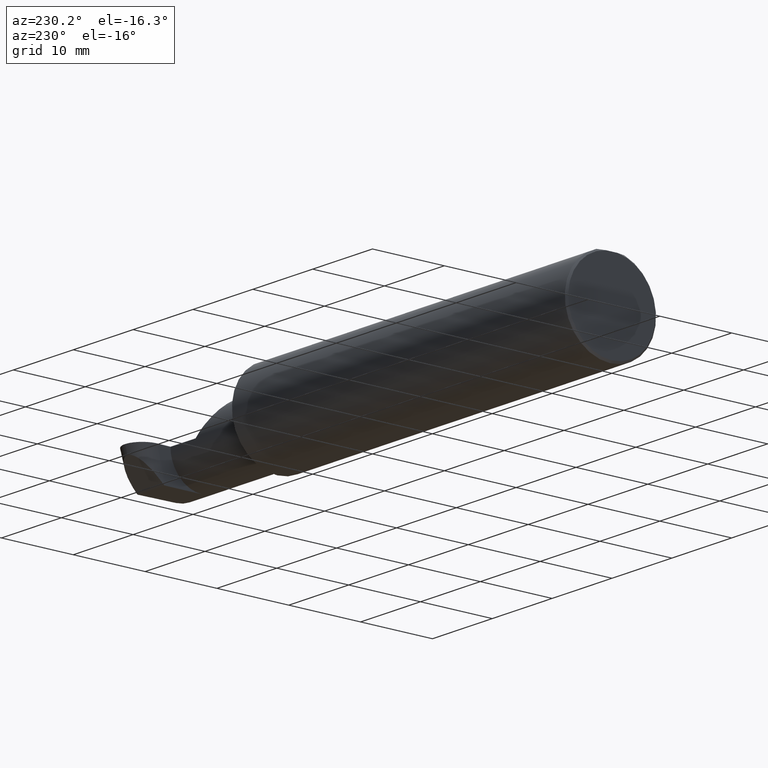
[diagram: clean part render]
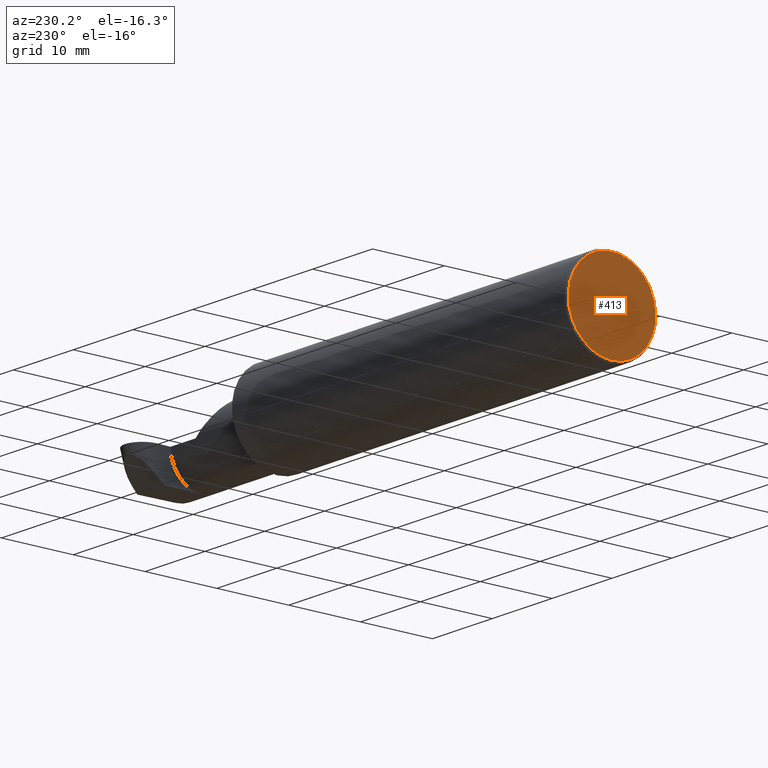
[diagram: same view with one face highlighted and labeled with its STEP entity id]
A machine part, auxiliary view. The second image highlights one B-rep face of the part: STEP entity #413.
In plain terms, the highlighted planar face has unit normal (1, 0, 0).
Its self-contained STEP definition (entity closure, byte-faithful):
#5 = VECTOR ( 'NONE', #337, 39.37007874015748143 ) ;
#11 = CARTESIAN_POINT ( 'NONE',  ( 0.000000000000000000, 0.000000000000000000, 0.000000000000000000 ) ) ;
#17 = CARTESIAN_POINT ( 'NONE',  ( 0.000000000000000000, 0.2498499999999998500, 0.2378499999999998671 ) ) ;
#31 = PLANE ( 'NONE',  #194 ) ;
#53 = DIRECTION ( 'NONE',  ( 0.000000000000000000, 0.000000000000000000, -1.000000000000000000 ) ) ;
#80 = LINE ( 'NONE', #17, #5 ) ;
#90 = AXIS2_PLACEMENT_3D ( 'NONE', #540, #531, #159 ) ;
#116 = VERTEX_POINT ( 'NONE', #403 ) ;
#159 = DIRECTION ( 'NONE',  ( 0.000000000000000000, 0.000000000000000000, -1.000000000000000000 ) ) ;
#184 = EDGE_CURVE ( 'NONE', #116, #681, #791, .T. ) ;
#194 = AXIS2_PLACEMENT_3D ( 'NONE', #738, #287, #53 ) ;
#228 = CARTESIAN_POINT ( 'NONE',  ( 0.000000000000000000, -0.03090954545120560767, 0.2378499999999998671 ) ) ;
#233 = ORIENTED_EDGE ( 'NONE', *, *, #652, .T. ) ;
#261 = ORIENTED_EDGE ( 'NONE', *, *, #184, .T. ) ;
#270 = DIRECTION ( 'NONE',  ( 0.000000000000000000, 0.000000000000000000, -1.000000000000000000 ) ) ;
#282 = EDGE_LOOP ( 'NONE', ( #458, #233, #261 ) ) ;
#287 = DIRECTION ( 'NONE',  ( 1.000000000000000000, 0.000000000000000000, 0.000000000000000000 ) ) ;
#337 = DIRECTION ( 'NONE',  ( -0.000000000000000000, 1.000000000000000000, -0.000000000000000000 ) ) ;
#344 = CIRCLE ( 'NONE', #90, 0.2398500000000001742 ) ;
#368 = FACE_OUTER_BOUND ( 'NONE', #282, .T. ) ;
#403 = CARTESIAN_POINT ( 'NONE',  ( 0.000000000000000000, 0.000000000000000000, -0.2398500000000001742 ) ) ;
#413 = ADVANCED_FACE ( 'NONE', ( #368 ), #31, .F. ) ;
#458 = ORIENTED_EDGE ( 'NONE', *, *, #756, .T. ) ;
#467 = DIRECTION ( 'NONE',  ( -1.000000000000000000, -0.000000000000000000, -0.000000000000000000 ) ) ;
#521 = CARTESIAN_POINT ( 'NONE',  ( 0.000000000000000000, 0.03090954545120574992, 0.2378499999999998671 ) ) ;
#531 = DIRECTION ( 'NONE',  ( -1.000000000000000000, -0.000000000000000000, -0.000000000000000000 ) ) ;
#540 = CARTESIAN_POINT ( 'NONE',  ( 0.000000000000000000, 0.000000000000000000, 0.000000000000000000 ) ) ;
#552 = AXIS2_PLACEMENT_3D ( 'NONE', #11, #467, #270 ) ;
#609 = VERTEX_POINT ( 'NONE', #521 ) ;
#652 = EDGE_CURVE ( 'NONE', #609, #116, #344, .T. ) ;
#681 = VERTEX_POINT ( 'NONE', #228 ) ;
#738 = CARTESIAN_POINT ( 'NONE',  ( 0.000000000000000000, 0.000000000000000000, 0.000000000000000000 ) ) ;
#756 = EDGE_CURVE ( 'NONE', #681, #609, #80, .T. ) ;
#791 = CIRCLE ( 'NONE', #552, 0.2398500000000001742 ) ;